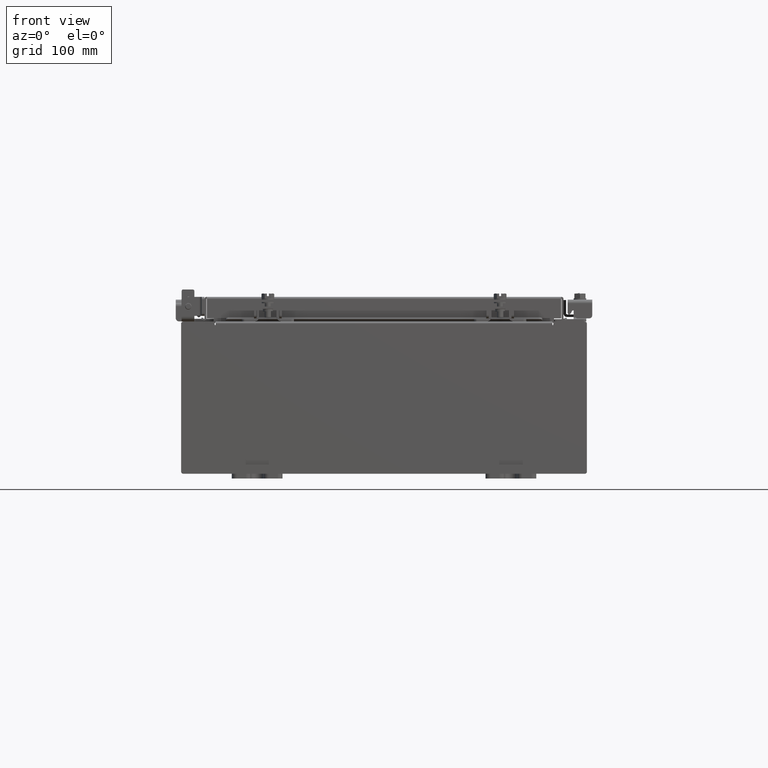
[diagram: clean part render]
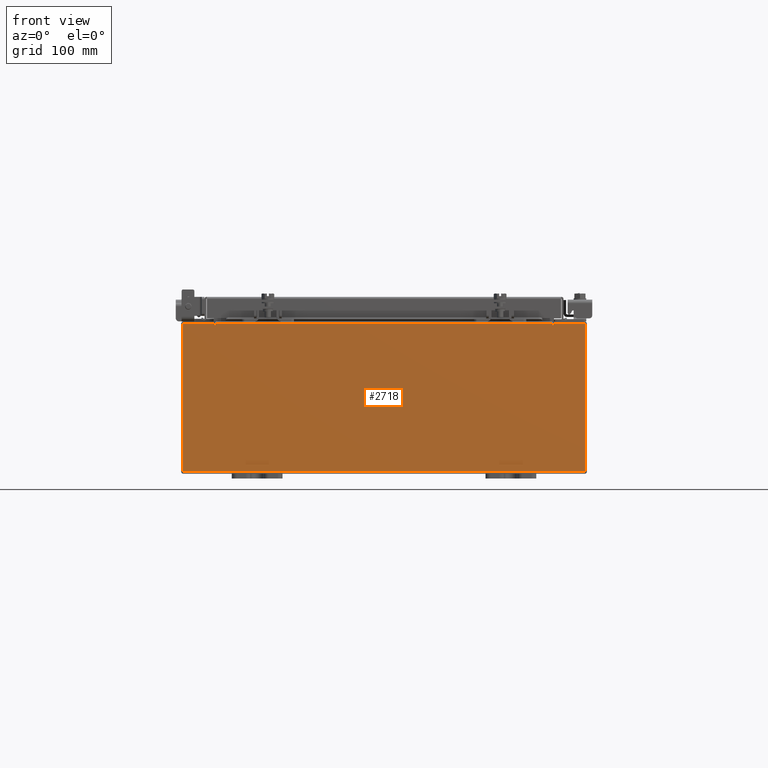
[diagram: same view with one face highlighted and labeled with its STEP entity id]
A machine part, front view. The second image highlights one B-rep face of the part: STEP entity #2718.
In plain terms, the highlighted planar face has unit normal (-0, 1, -0).
Its self-contained STEP definition (entity closure, byte-faithful):
#92 = CIRCLE ( 'NONE', #1584, 0.01867500000000003900 ) ;
#184 = LINE ( 'NONE', #14300, #13476 ) ;
#539 = EDGE_CURVE ( 'NONE', #12311, #17018, #184, .T. ) ;
#594 = VECTOR ( 'NONE', #3556, 39.37007874015748100 ) ;
#970 = EDGE_CURVE ( 'NONE', #12311, #1174, #8533, .T. ) ;
#1124 = EDGE_CURVE ( 'NONE', #5969, #16500, #6362, .T. ) ;
#1174 = VERTEX_POINT ( 'NONE', #22357 ) ;
#1330 = CARTESIAN_POINT ( 'NONE',  ( -6.655875000000000900, 0.0000000000000000000, 2.874950000000000600 ) ) ;
#1456 = CARTESIAN_POINT ( 'NONE',  ( -7.925300000000000000, 0.0000000000000000000, 2.925300000000000500 ) ) ;
#1575 = DIRECTION ( 'NONE',  ( 1.000000000000000000, 0.0000000000000000000, 0.0000000000000000000 ) ) ;
#1584 = AXIS2_PLACEMENT_3D ( 'NONE', #14153, #3740, #15932 ) ;
#2255 = CARTESIAN_POINT ( 'NONE',  ( -6.637200000000000900, -1.707404996040164500E-016, 2.912300000000000600 ) ) ;
#2718 = ADVANCED_FACE ( 'NONE', ( #10677 ), #16977, .F. ) ;
#3007 = CARTESIAN_POINT ( 'NONE',  ( 0.0000000000000000000, 0.0000000000000000000, 0.0000000000000000000 ) ) ;
#3053 = VECTOR ( 'NONE', #4158, 39.37007874015748100 ) ;
#3071 = DIRECTION ( 'NONE',  ( 0.0000000000000000000, 0.0000000000000000000, -1.000000000000000000 ) ) ;
#3235 = ORIENTED_EDGE ( 'NONE', *, *, #18223, .T. ) ;
#3546 = ORIENTED_EDGE ( 'NONE', *, *, #12347, .T. ) ;
#3556 = DIRECTION ( 'NONE',  ( 0.0000000000000000000, 0.0000000000000000000, 1.000000000000000000 ) ) ;
#3740 = DIRECTION ( 'NONE',  ( -0.0000000000000000000, 1.000000000000000000, -0.0000000000000000000 ) ) ;
#3976 = CARTESIAN_POINT ( 'NONE',  ( -7.925300000000000000, 0.0000000000000000000, 2.925300000000000500 ) ) ;
#3991 = CARTESIAN_POINT ( 'NONE',  ( -6.674550000000000900, 0.0000000000000000000, 2.874950000000000600 ) ) ;
#4118 = DIRECTION ( 'NONE',  ( 0.0000000000000000000, -0.0000000000000000000, -1.000000000000000000 ) ) ;
#4158 = DIRECTION ( 'NONE',  ( 1.000000000000000000, 0.0000000000000000000, 0.0000000000000000000 ) ) ;
#5400 = LINE ( 'NONE', #17325, #19886 ) ;
#5441 = EDGE_CURVE ( 'NONE', #16501, #20175, #17994, .T. ) ;
#5628 = EDGE_CURVE ( 'NONE', #7511, #18194, #5400, .T. ) ;
#5702 = LINE ( 'NONE', #12196, #594 ) ;
#5739 = CARTESIAN_POINT ( 'NONE',  ( 6.637199999999997300, 0.0000000000000000000, 2.874950000000000600 ) ) ;
#5880 = CARTESIAN_POINT ( 'NONE',  ( 7.925300000000000000, 0.0000000000000000000, 2.925300000000000500 ) ) ;
#5969 = VERTEX_POINT ( 'NONE', #21679 ) ;
#6306 = ORIENTED_EDGE ( 'NONE', *, *, #15007, .F. ) ;
#6362 = LINE ( 'NONE', #16797, #14555 ) ;
#6833 = CARTESIAN_POINT ( 'NONE',  ( 6.674549999999999100, 0.0000000000000000000, 2.874950000000000600 ) ) ;
#7345 = EDGE_CURVE ( 'NONE', #16500, #9880, #92, .T. ) ;
#7511 = VERTEX_POINT ( 'NONE', #5880 ) ;
#7813 = EDGE_CURVE ( 'NONE', #8275, #15914, #5702, .T. ) ;
#7849 = ORIENTED_EDGE ( 'NONE', *, *, #970, .T. ) ;
#8275 = VERTEX_POINT ( 'NONE', #3991 ) ;
#8410 = ORIENTED_EDGE ( 'NONE', *, *, #11076, .T. ) ;
#8533 = LINE ( 'NONE', #2255, #21917 ) ;
#8831 = ORIENTED_EDGE ( 'NONE', *, *, #1124, .F. ) ;
#9115 = DIRECTION ( 'NONE',  ( 0.0000000000000000000, 0.0000000000000000000, 1.000000000000000000 ) ) ;
#9743 = DIRECTION ( 'NONE',  ( -0.0000000000000000000, -0.0000000000000000000, 1.000000000000000000 ) ) ;
#9880 = VERTEX_POINT ( 'NONE', #5739 ) ;
#10161 = LINE ( 'NONE', #21375, #19483 ) ;
#10448 = DIRECTION ( 'NONE',  ( -2.170286390200002500E-014, 0.0000000000000000000, -1.000000000000000000 ) ) ;
#10470 = EDGE_CURVE ( 'NONE', #9880, #1174, #10161, .T. ) ;
#10677 = FACE_OUTER_BOUND ( 'NONE', #16107, .T. ) ;
#11076 = EDGE_CURVE ( 'NONE', #20175, #15914, #12617, .T. ) ;
#11675 = CARTESIAN_POINT ( 'NONE',  ( -6.637200000000000900, -0.0000000000000000000, 2.874950000000000600 ) ) ;
#11761 = ORIENTED_EDGE ( 'NONE', *, *, #539, .F. ) ;
#12196 = CARTESIAN_POINT ( 'NONE',  ( -6.674550000000000900, -0.0000000000000000000, 0.0000000000000000000 ) ) ;
#12311 = VERTEX_POINT ( 'NONE', #16292 ) ;
#12347 = EDGE_CURVE ( 'NONE', #5969, #7511, #16408, .T. ) ;
#12527 = ORIENTED_EDGE ( 'NONE', *, *, #10470, .F. ) ;
#12617 = LINE ( 'NONE', #3976, #21358 ) ;
#12825 = CARTESIAN_POINT ( 'NONE',  ( -7.925300000000000000, 0.0000000000000000000, 2.925300000000000500 ) ) ;
#13325 = VECTOR ( 'NONE', #9743, 39.37007874015748100 ) ;
#13362 = ORIENTED_EDGE ( 'NONE', *, *, #7813, .F. ) ;
#13476 = VECTOR ( 'NONE', #18124, 39.37007874015748100 ) ;
#13477 = DIRECTION ( 'NONE',  ( -0.0000000000000000000, 1.000000000000000000, -0.0000000000000000000 ) ) ;
#13886 = DIRECTION ( 'NONE',  ( -1.000000000000000000, -0.0000000000000000000, -0.0000000000000000000 ) ) ;
#13980 = CARTESIAN_POINT ( 'NONE',  ( -6.674550000000000900, 0.0000000000000000000, 2.925300000000000500 ) ) ;
#14089 = CIRCLE ( 'NONE', #19645, 0.01867500000000003900 ) ;
#14153 = CARTESIAN_POINT ( 'NONE',  ( 6.655874999999998200, 0.0000000000000000000, 2.874950000000000600 ) ) ;
#14300 = CARTESIAN_POINT ( 'NONE',  ( -6.637200000000000900, -0.0000000000000000000, 0.0000000000000000000 ) ) ;
#14491 = VECTOR ( 'NONE', #13886, 39.37007874015748100 ) ;
#14555 = VECTOR ( 'NONE', #10448, 39.37007874015748100 ) ;
#14563 = DIRECTION ( 'NONE',  ( 0.0000000000000000000, -1.000000000000000000, 0.0000000000000000000 ) ) ;
#15007 = EDGE_CURVE ( 'NONE', #17018, #8275, #14089, .T. ) ;
#15053 = LINE ( 'NONE', #20987, #14491 ) ;
#15544 = DIRECTION ( 'NONE',  ( 0.0000000000000000000, 0.0000000000000000000, -1.000000000000000000 ) ) ;
#15914 = VERTEX_POINT ( 'NONE', #13980 ) ;
#15932 = DIRECTION ( 'NONE',  ( 0.0000000000000000000, 0.0000000000000000000, -1.000000000000000000 ) ) ;
#16107 = EDGE_LOOP ( 'NONE', ( #13362, #6306, #11761, #7849, #12527, #21668, #8831, #3546, #22065, #3235, #21536, #8410 ) ) ;
#16292 = CARTESIAN_POINT ( 'NONE',  ( -6.637200000000000900, -1.707404996040164500E-016, 2.912300000000000600 ) ) ;
#16408 = LINE ( 'NONE', #12825, #3053 ) ;
#16500 = VERTEX_POINT ( 'NONE', #6833 ) ;
#16501 = VERTEX_POINT ( 'NONE', #19072 ) ;
#16797 = CARTESIAN_POINT ( 'NONE',  ( 6.674549999999936900, -0.0000000000000000000, -1.448568502570928700E-013 ) ) ;
#16977 = PLANE ( 'NONE',  #22508 ) ;
#17018 = VERTEX_POINT ( 'NONE', #11675 ) ;
#17325 = CARTESIAN_POINT ( 'NONE',  ( 7.925300000000000000, 0.0000000000000000000, 2.925300000000000500 ) ) ;
#17436 = CARTESIAN_POINT ( 'NONE',  ( 7.925300000000000000, 0.0000000000000000000, -2.925299999999999600 ) ) ;
#17994 = LINE ( 'NONE', #21985, #13325 ) ;
#18124 = DIRECTION ( 'NONE',  ( 0.0000000000000000000, 0.0000000000000000000, -1.000000000000000000 ) ) ;
#18194 = VERTEX_POINT ( 'NONE', #17436 ) ;
#18223 = EDGE_CURVE ( 'NONE', #18194, #16501, #15053, .T. ) ;
#19072 = CARTESIAN_POINT ( 'NONE',  ( -7.925300000000000000, 0.0000000000000000000, -2.925299999999999600 ) ) ;
#19483 = VECTOR ( 'NONE', #9115, 39.37007874015748100 ) ;
#19645 = AXIS2_PLACEMENT_3D ( 'NONE', #1330, #13477, #3071 ) ;
#19886 = VECTOR ( 'NONE', #15544, 39.37007874015748100 ) ;
#20175 = VERTEX_POINT ( 'NONE', #1456 ) ;
#20987 = CARTESIAN_POINT ( 'NONE',  ( -7.925300000000000000, 0.0000000000000000000, -2.925299999999999600 ) ) ;
#21349 = DIRECTION ( 'NONE',  ( 1.000000000000000000, 0.0000000000000000000, 0.0000000000000000000 ) ) ;
#21358 = VECTOR ( 'NONE', #21349, 39.37007874015748100 ) ;
#21375 = CARTESIAN_POINT ( 'NONE',  ( 6.637199999999999100, 0.0000000000000000000, 0.0000000000000000000 ) ) ;
#21536 = ORIENTED_EDGE ( 'NONE', *, *, #5441, .T. ) ;
#21668 = ORIENTED_EDGE ( 'NONE', *, *, #7345, .F. ) ;
#21679 = CARTESIAN_POINT ( 'NONE',  ( 6.674549999999999100, 0.0000000000000000000, 2.925300000000000500 ) ) ;
#21917 = VECTOR ( 'NONE', #1575, 39.37007874015748100 ) ;
#21985 = CARTESIAN_POINT ( 'NONE',  ( -7.925300000000000000, 0.0000000000000000000, 2.925300000000000500 ) ) ;
#22065 = ORIENTED_EDGE ( 'NONE', *, *, #5628, .T. ) ;
#22357 = CARTESIAN_POINT ( 'NONE',  ( 6.637199999999999100, 0.0000000000000000000, 2.912300000000000600 ) ) ;
#22508 = AXIS2_PLACEMENT_3D ( 'NONE', #3007, #14563, #4118 ) ;